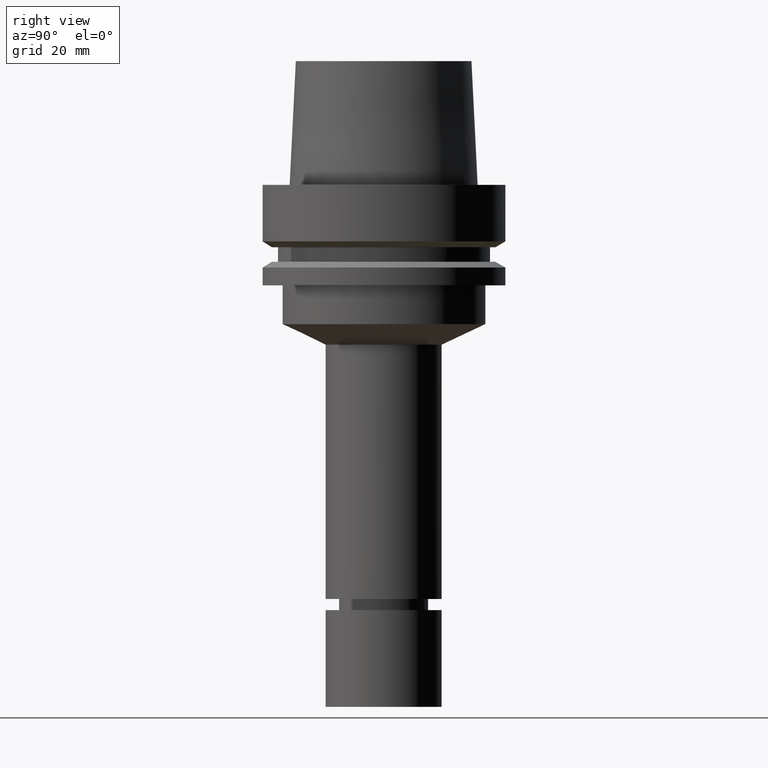
[diagram: clean part render]
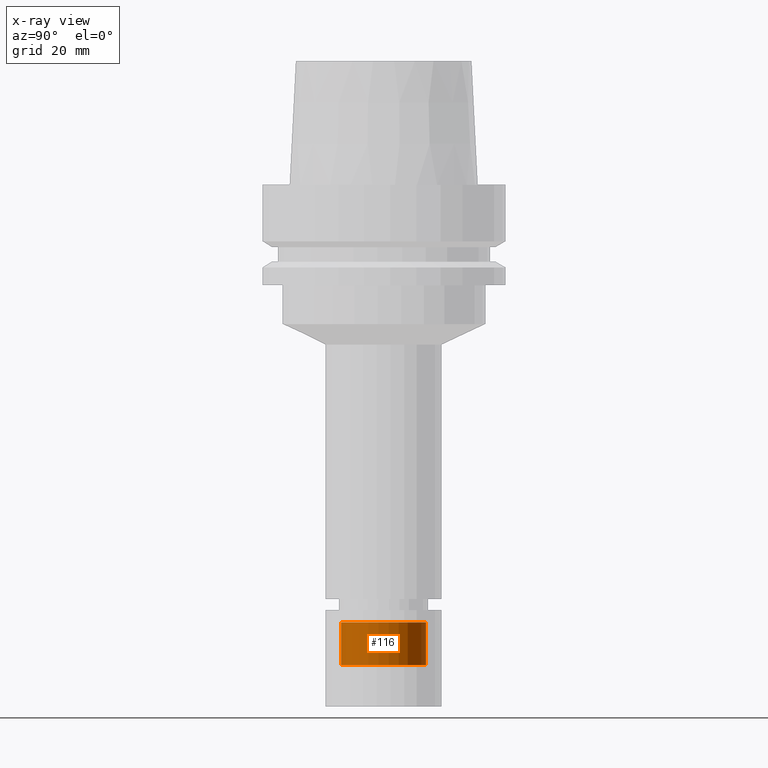
[diagram: x-ray — body ghosted, one internal face saturated and labeled with its STEP entity id]
A machine part, right view, then the same camera in x-ray: the body is ghosted and one INTERNAL B-rep face — a face not visible from any outside direction — is saturated and labeled: STEP entity #116.
In plain terms, the highlighted cylindrical surface (bore or boss wall) has radius 11 mm, axis along (-0, -0, 1).
Its self-contained STEP definition (entity closure, byte-faithful):
#116=ADVANCED_FACE('Unnamed[1]',(#271,#272),#273,.T.);
#121=EDGE_CURVE('Unnamed[1]',#280,#280,#281,.T.);
#186=EDGE_CURVE('Unnamed[1]',#379,#379,#380,.T.);
#271=FACE_BOUND('',#478,.T.);
#272=FACE_BOUND('',#479,.T.);
#273=CYLINDRICAL_SURFACE('',#480,11.0000000000001);
#280=VERTEX_POINT('',#489);
#281=CIRCLE('',#490,10.9999999999999);
#379=VERTEX_POINT('',#611);
#380=CIRCLE('',#612,11.0000000000003);
#478=EDGE_LOOP('',(#692));
#479=EDGE_LOOP('',(#693));
#480=AXIS2_PLACEMENT_3D('',#694,#695,#696);
#489=CARTESIAN_POINT('',(6.93150088317393E-015,10.9999999999999,-113.199999999998));
#490=AXIS2_PLACEMENT_3D('',#703,#704,#705);
#611=CARTESIAN_POINT('',(7.61085802635992E-015,11.0000000000003,-124.294744111672));
#612=AXIS2_PLACEMENT_3D('',#811,#812,#813);
#692=ORIENTED_EDGE('',*,*,#121,.F.);
#693=ORIENTED_EDGE('',*,*,#186,.T.);
#694=CARTESIAN_POINT('',(7.27117945476692E-015,1.45423589095338E-014,-118.747372055835));
#695=DIRECTION('',(-6.12323399573677E-017,-1.22464679914735E-016,1.0));
#696=DIRECTION('',(-1.23259516440783E-032,1.0,1.22464679914735E-016));
#703=CARTESIAN_POINT('',(6.93150088317393E-015,1.38630017663479E-014,-113.199999999998));
#704=DIRECTION('',(-6.12323399573676E-017,-1.22464679914735E-016,1.0));
#705=DIRECTION('',(-1.23259516440783E-032,1.0,1.22464679914735E-016));
#811=CARTESIAN_POINT('',(7.61085802635992E-015,1.52217160527198E-014,-124.294744111672));
#812=DIRECTION('',(-6.12323399573676E-017,-1.22464679914735E-016,1.0));
#813=DIRECTION('',(-1.23259516440783E-032,1.0,1.22464679914735E-016));